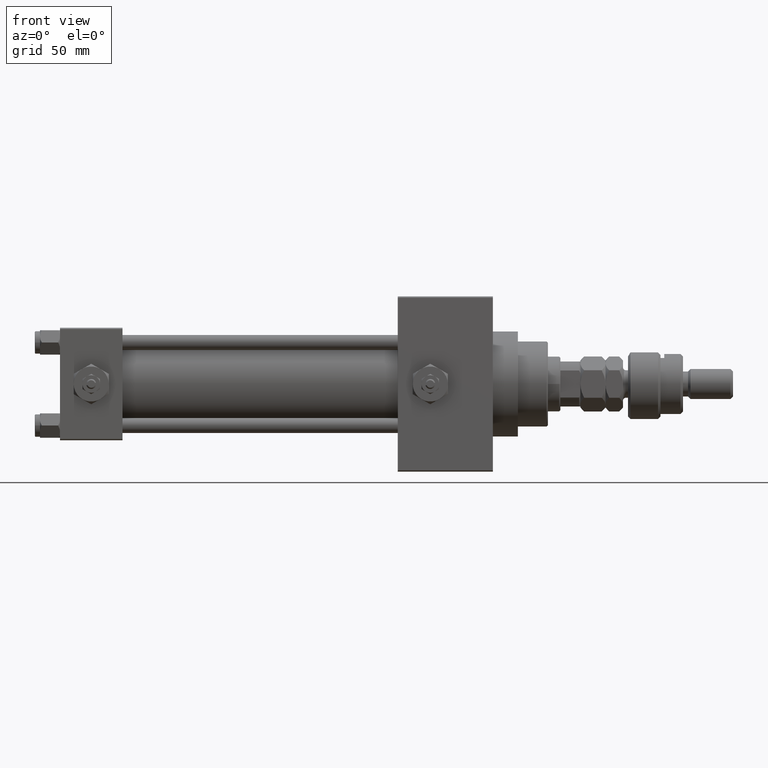
[diagram: clean part render]
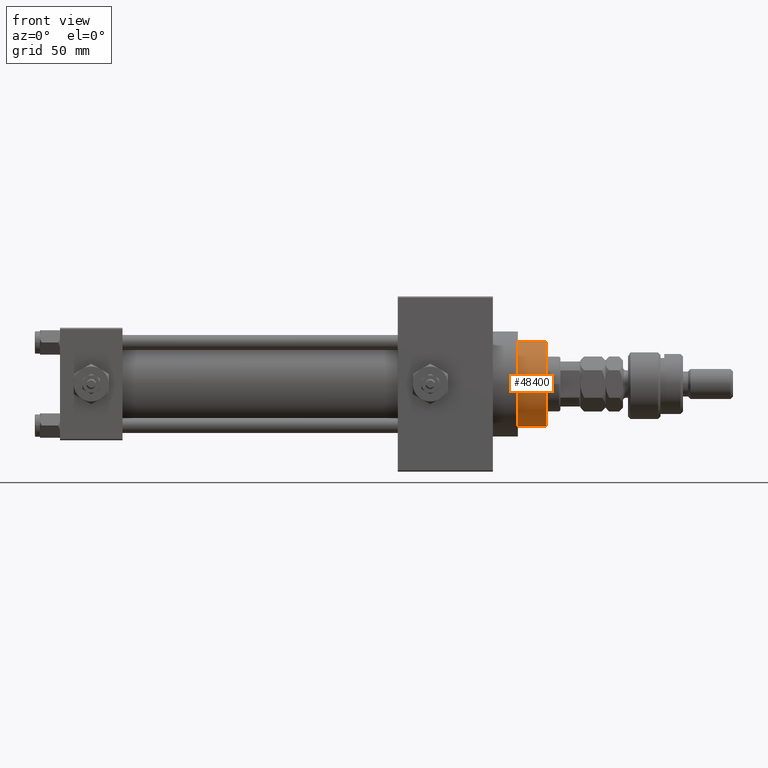
[diagram: same view with one face highlighted and labeled with its STEP entity id]
A machine part, front view. The second image highlights one B-rep face of the part: STEP entity #48400.
In plain terms, the highlighted cylindrical surface (partial cylindrical patch) has radius 17 mm, axis along (-1, 0, 0).
Its self-contained STEP definition (entity closure, byte-faithful):
#465 = ORIENTED_EDGE ( 'NONE', *, *, #51843, .T. ) ;
#1066 = CARTESIAN_POINT ( 'NONE',  ( -17.00000000000000000, 0.000000000000000000, 55.26000000000000512 ) ) ;
#2070 = DIRECTION ( 'NONE',  ( -0.000000000000000000, -0.000000000000000000, -1.000000000000000000 ) ) ;
#3364 = CARTESIAN_POINT ( 'NONE',  ( 0.000000000000000000, 0.000000000000000000, 54.76000000000001222 ) ) ;
#3416 = AXIS2_PLACEMENT_3D ( 'NONE', #3364, #15457, #31508 ) ;
#3743 = CARTESIAN_POINT ( 'NONE',  ( 17.00000000000000000, 2.081899558550500280E-15, 54.76000000000001222 ) ) ;
#7006 = CARTESIAN_POINT ( 'NONE',  ( -17.00000000000000000, 0.000000000000000000, 43.25999999999999801 ) ) ;
#7717 = VERTEX_POINT ( 'NONE', #7006 ) ;
#9055 = EDGE_LOOP ( 'NONE', ( #51182, #11656, #465, #41183 ) ) ;
#10453 = CARTESIAN_POINT ( 'NONE',  ( 0.000000000000000000, 0.000000000000000000, 55.26000000000000512 ) ) ;
#11656 = ORIENTED_EDGE ( 'NONE', *, *, #40334, .T. ) ;
#12365 = EDGE_CURVE ( 'NONE', #13539, #7717, #37058, .T. ) ;
#13189 = CARTESIAN_POINT ( 'NONE',  ( 17.00000000000000000, 2.081899558550500280E-15, 55.26000000000000512 ) ) ;
#13539 = VERTEX_POINT ( 'NONE', #21891 ) ;
#15457 = DIRECTION ( 'NONE',  ( 0.000000000000000000, 0.000000000000000000, -1.000000000000000000 ) ) ;
#17088 = DIRECTION ( 'NONE',  ( -0.000000000000000000, -0.000000000000000000, -1.000000000000000000 ) ) ;
#17514 = VECTOR ( 'NONE', #29242, 1000.000000000000000 ) ;
#19984 = CIRCLE ( 'NONE', #37593, 17.00000000000000000 ) ;
#20813 = DIRECTION ( 'NONE',  ( 1.000000000000000000, 0.000000000000000000, 0.000000000000000000 ) ) ;
#21891 = CARTESIAN_POINT ( 'NONE',  ( -17.00000000000000000, 0.000000000000000000, 54.76000000000001222 ) ) ;
#23280 = CARTESIAN_POINT ( 'NONE',  ( 17.00000000000000000, 2.081899558550500280E-15, 43.25999999999999801 ) ) ;
#25765 = VERTEX_POINT ( 'NONE', #23280 ) ;
#28202 = CARTESIAN_POINT ( 'NONE',  ( 0.000000000000000000, 0.000000000000000000, 43.25999999999999801 ) ) ;
#29242 = DIRECTION ( 'NONE',  ( -0.000000000000000000, -0.000000000000000000, -1.000000000000000000 ) ) ;
#30283 = CIRCLE ( 'NONE', #3416, 17.00000000000000000 ) ;
#30980 = CYLINDRICAL_SURFACE ( 'NONE', #37850, 17.00000000000000000 ) ;
#31508 = DIRECTION ( 'NONE',  ( 1.000000000000000000, 0.000000000000000000, 0.000000000000000000 ) ) ;
#33715 = VERTEX_POINT ( 'NONE', #3743 ) ;
#36927 = VECTOR ( 'NONE', #17088, 1000.000000000000000 ) ;
#37058 = LINE ( 'NONE', #1066, #36927 ) ;
#37593 = AXIS2_PLACEMENT_3D ( 'NONE', #28202, #40522, #20813 ) ;
#37850 = AXIS2_PLACEMENT_3D ( 'NONE', #10453, #2070, #50407 ) ;
#40334 = EDGE_CURVE ( 'NONE', #33715, #25765, #48924, .T. ) ;
#40522 = DIRECTION ( 'NONE',  ( 0.000000000000000000, 0.000000000000000000, 1.000000000000000000 ) ) ;
#41183 = ORIENTED_EDGE ( 'NONE', *, *, #12365, .F. ) ;
#46466 = FACE_OUTER_BOUND ( 'NONE', #9055, .T. ) ;
#48400 = ADVANCED_FACE ( 'NONE', ( #46466 ), #30980, .T. ) ;
#48589 = EDGE_CURVE ( 'NONE', #13539, #33715, #30283, .T. ) ;
#48924 = LINE ( 'NONE', #13189, #17514 ) ;
#50407 = DIRECTION ( 'NONE',  ( -1.000000000000000000, 0.000000000000000000, 0.000000000000000000 ) ) ;
#51182 = ORIENTED_EDGE ( 'NONE', *, *, #48589, .T. ) ;
#51843 = EDGE_CURVE ( 'NONE', #25765, #7717, #19984, .T. ) ;